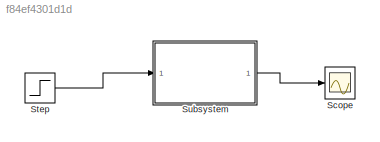
MODEL slx_f84ef4301d1d
KIND model
CONFIG AbsTol = auto
CONFIG EnableMultiTasking = off
CONFIG FixedStep = auto
CONFIG MaxStep = auto
CONFIG MinStep = auto
CONFIG RelTol = 1e-3
CONFIG SampleTimeConstraint = Unconstrained
CONFIG Solver = VariableStepAuto
CONFIG SolverName = VariableStepAuto
CONFIG StartTime = 0.0
CONFIG StopTime = 10.0
BLOCK [Scope] Scope
  Floating = off
  NumInputPorts = 1
  Ports = [1]
  ScopeSpecificationString = Simulink.scopes.TimeScopeBlockCfg('CurrentConfiguration', extmgr.ConfigurationSet(extmgr.Configuration('Core','General UI',true),extmgr.Configuration('Core','Source UI',true),extmgr.Configuration('Sources','WiredSimulink',true),extmgr.Configuration('Visuals','Time Domain',true,'SerializedDisplays',{struct('MinYLimReal','-0.5','MaxYLimReal','4.5','YLabelReal','','MinYLimMag','0.00000','MaxYLimMag',...<+1399ch>
BLOCK [Step] Step
  SampleTime = 0
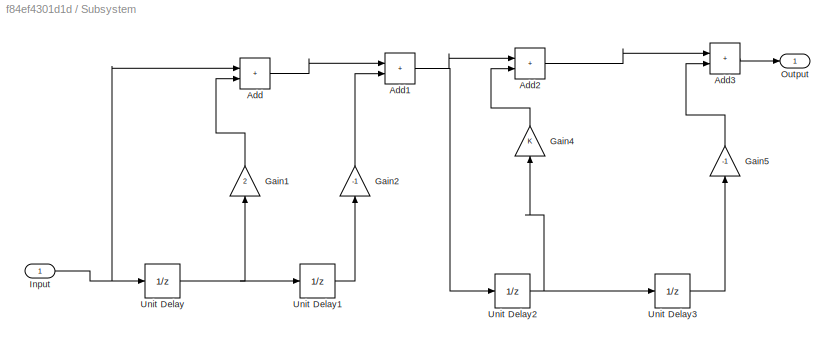
BLOCK [SubSystem] Subsystem
  Ports = [1, 1]
  RequestExecContextInheritance = off
BLOCK [Sum] Subsystem/Add
  IconShape = rectangular
  Ports = [2, 1]
BLOCK [Sum] Subsystem/Add1
  IconShape = rectangular
  Ports = [2, 1]
BLOCK [Sum] Subsystem/Add2
  IconShape = rectangular
  Ports = [2, 1]
BLOCK [Sum] Subsystem/Add3
  IconShape = rectangular
  Ports = [2, 1]
BLOCK [Gain] Subsystem/Gain1
  Gain = 2
  NameLocation = right
BLOCK [Gain] Subsystem/Gain2
  Gain = -1
  NameLocation = right
BLOCK [Gain] Subsystem/Gain4
  NameLocation = right
BLOCK [Gain] Subsystem/Gain5
  Gain = -1
  NameLocation = right
BLOCK [Inport] Subsystem/Input
BLOCK [Outport] Subsystem/Output
BLOCK [UnitDelay] Subsystem/Unit Delay
  HasFrameUpgradeWarning = on
  SampleTime = -1
BLOCK [UnitDelay] Subsystem/Unit Delay1
  HasFrameUpgradeWarning = on
  SampleTime = -1
BLOCK [UnitDelay] Subsystem/Unit Delay2
  HasFrameUpgradeWarning = on
  SampleTime = -1
BLOCK [UnitDelay] Subsystem/Unit Delay3
  HasFrameUpgradeWarning = on
  SampleTime = -1
LINE Step:1 -> Subsystem:1
NET Subsystem/Add1:1 -> Subsystem/Add2:1, Subsystem/Unit Delay2:1
LINE Subsystem/Add2:1 -> Subsystem/Add3:1
LINE Subsystem/Add3:1 -> Subsystem/Output:1
LINE Subsystem/Add:1 -> Subsystem/Add1:1
LINE Subsystem/Gain1:1 -> Subsystem/Add:2
LINE Subsystem/Gain2:1 -> Subsystem/Add1:2
LINE Subsystem/Gain4:1 -> Subsystem/Add2:2
LINE Subsystem/Gain5:1 -> Subsystem/Add3:2
NET Subsystem/Input:1 -> Subsystem/Add:1, Subsystem/Unit Delay:1
LINE Subsystem/Unit Delay1:1 -> Subsystem/Gain2:1
NET Subsystem/Unit Delay2:1 -> Subsystem/Gain4:1, Subsystem/Unit Delay3:1
LINE Subsystem/Unit Delay3:1 -> Subsystem/Gain5:1
NET Subsystem/Unit Delay:1 -> Subsystem/Gain1:1, Subsystem/Unit Delay1:1
LINE Subsystem:1 -> Scope:1
note: NET lines group one-source signal fan-out (src -> all destinations, sorted); 1:1 wires keep LINE
